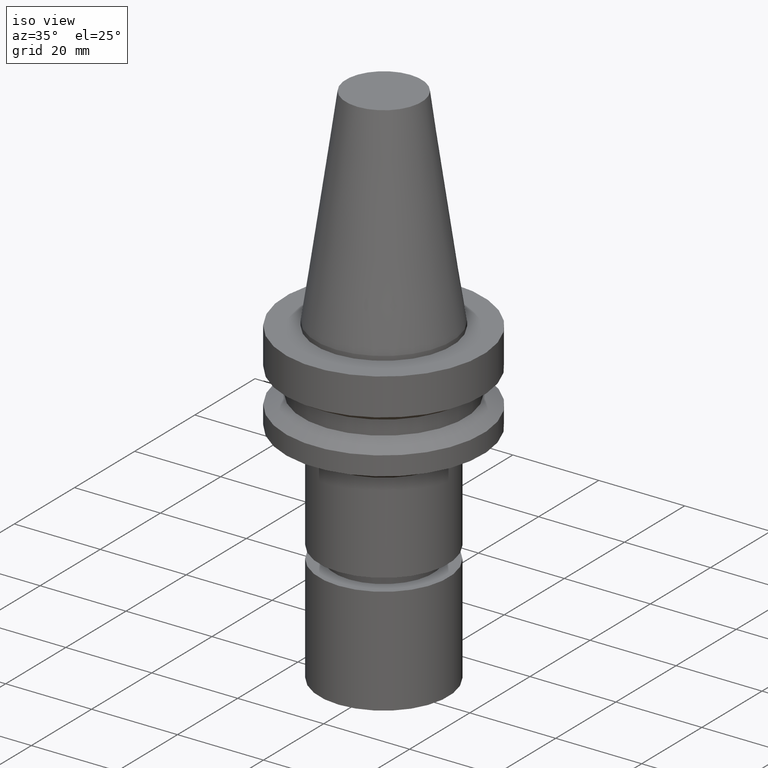
[diagram: clean part render]
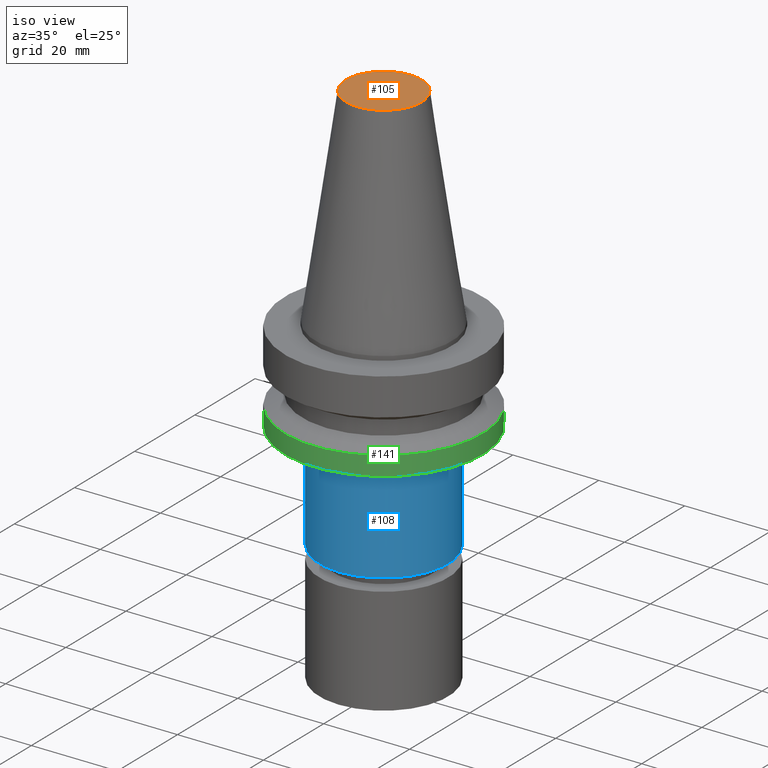
[diagram: same view with three faces highlighted in distinct colors, each labeled with its STEP entity id]
A machine part, iso view with three faces highlighted in distinct colors.
Their STEP definitions:

[orange] entity #105 — the highlighted planar face has unit normal (-0, -0, 1).
#105=ADVANCED_FACE('Unnamed[1]',(#248),#249,.T.);
#115=EDGE_CURVE('Unnamed[1]',#264,#264,#265,.T.);
#248=FACE_OUTER_BOUND('',#436,.T.);
#249=PLANE('',#437);
#264=VERTEX_POINT('',#456);
#265=CIRCLE('',#457,8.81650000198669);
#436=EDGE_LOOP('',(#632));
#437=AXIS2_PLACEMENT_3D('',#633,#634,#635);
#456=CARTESIAN_POINT('',(-2.96364525393659E-015,8.81650000198669,48.4));
#457=AXIS2_PLACEMENT_3D('',#651,#652,#653);
#632=ORIENTED_EDGE('',*,*,#115,.F.);
#633=CARTESIAN_POINT('',(-2.96364525393659E-015,4.40825000099334,48.4));
#634=DIRECTION('',(-6.12323399573677E-017,-1.22464679914735E-016,1.0));
#635=DIRECTION('',(1.23259516440783E-032,-1.0,-1.22464679914735E-016));
#651=CARTESIAN_POINT('',(-2.96364525393659E-015,-5.92729050787319E-015,48.4));
#652=DIRECTION('',(6.12323399573677E-017,1.22464679914735E-016,-1.0));
#653=DIRECTION('',(-1.23259516440783E-032,1.0,1.22464679914735E-016));

[blue] entity #108 — the highlighted cylindrical surface (bore or boss wall) has radius 15 mm, axis along (0, 0, -1).
#89=EDGE_CURVE('Unnamed[1]',#223,#223,#224,.T.);
#108=ADVANCED_FACE('Unnamed[1]',(#252,#253),#254,.T.);
#171=EDGE_CURVE('Unnamed[1]',#348,#348,#349,.T.);
#223=VERTEX_POINT('',#405);
#224=CIRCLE('',#406,15.0000000000002);
#252=FACE_BOUND('',#441,.T.);
#253=FACE_BOUND('',#442,.T.);
#254=CYLINDRICAL_SURFACE('',#443,15.0000000000003);
#348=VERTEX_POINT('',#559);
#349=CIRCLE('',#560,15.0000000000004);
#405=CARTESIAN_POINT('',(2.88404321199198E-015,15.0000000000002,-47.0999999999994));
#406=AXIS2_PLACEMENT_3D('',#604,#605,#606);
#441=EDGE_LOOP('',(#637));
#442=EDGE_LOOP('',(#638));
#443=AXIS2_PLACEMENT_3D('',#639,#640,#641);
#559=CARTESIAN_POINT('',(1.59204083889156E-015,15.0000000000004,-26.0));
#560=AXIS2_PLACEMENT_3D('',#743,#744,#745);
#604=CARTESIAN_POINT('',(2.88404321199198E-015,5.76808642398395E-015,-47.0999999999994));
#605=DIRECTION('',(6.12323399573677E-017,1.22464679914735E-016,-1.0));
#606=DIRECTION('',(-1.23259516440783E-032,1.0,1.22464679914735E-016));
#637=ORIENTED_EDGE('',*,*,#89,.F.);
#638=ORIENTED_EDGE('',*,*,#171,.T.);
#639=CARTESIAN_POINT('',(2.23804202544177E-015,4.47608405088353E-015,-36.5499999999997));
#640=DIRECTION('',(6.12323399573677E-017,1.22464679914735E-016,-1.0));
#641=DIRECTION('',(-1.23259516440783E-032,1.0,1.22464679914735E-016));
#743=CARTESIAN_POINT('',(1.59204083889156E-015,3.18408167778311E-015,-26.0));
#744=DIRECTION('',(6.12323399573677E-017,1.22464679914735E-016,-1.0));
#745=DIRECTION('',(-1.23259516440783E-032,1.0,1.22464679914735E-016));

[green] entity #141 — the highlighted cylindrical surface (bore or boss wall) has radius 23 mm, axis along (0, 0, -1).
#100=EDGE_CURVE('Unnamed[1]',#241,#241,#242,.T.);
#141=ADVANCED_FACE('Unnamed[1]',(#303,#304),#305,.T.);
#178=EDGE_CURVE('Unnamed[1]',#359,#359,#360,.T.);
#241=VERTEX_POINT('',#427);
#242=CIRCLE('',#428,23.0);
#303=FACE_BOUND('',#504,.T.);
#304=FACE_BOUND('',#505,.T.);
#305=CYLINDRICAL_SURFACE('',#506,23.0);
#359=VERTEX_POINT('',#573);
#360=CIRCLE('',#574,23.0);
#427=CARTESIAN_POINT('',(1.07768918324967E-015,23.0,-17.6));
#428=AXIS2_PLACEMENT_3D('',#625,#626,#627);
#504=EDGE_LOOP('',(#692));
#505=EDGE_LOOP('',(#693));
#506=AXIS2_PLACEMENT_3D('',#694,#695,#696);
#573=CARTESIAN_POINT('',(1.34711147906209E-015,23.0,-22.0));
#574=AXIS2_PLACEMENT_3D('',#755,#756,#757);
#625=CARTESIAN_POINT('',(1.07768918324967E-015,2.15537836649934E-015,-17.6));
#626=DIRECTION('',(6.12323399573677E-017,1.22464679914735E-016,-1.0));
#627=DIRECTION('',(-1.23259516440783E-032,1.0,1.22464679914735E-016));
#692=ORIENTED_EDGE('',*,*,#178,.F.);
#693=ORIENTED_EDGE('',*,*,#100,.T.);
#694=CARTESIAN_POINT('',(1.21240033115588E-015,2.42480066231176E-015,-19.8));
#695=DIRECTION('',(6.12323399573677E-017,1.22464679914735E-016,-1.0));
#696=DIRECTION('',(-1.23259516440783E-032,1.0,1.22464679914735E-016));
#755=CARTESIAN_POINT('',(1.34711147906209E-015,2.69422295812418E-015,-22.0));
#756=DIRECTION('',(6.12323399573677E-017,1.22464679914735E-016,-1.0));
#757=DIRECTION('',(-1.23259516440783E-032,1.0,1.22464679914735E-016));